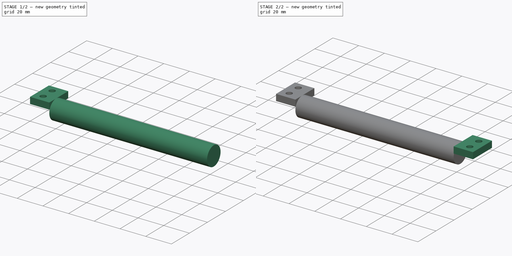
[diagram: build sequence overview — one tinted view per stage of 2, left to right]
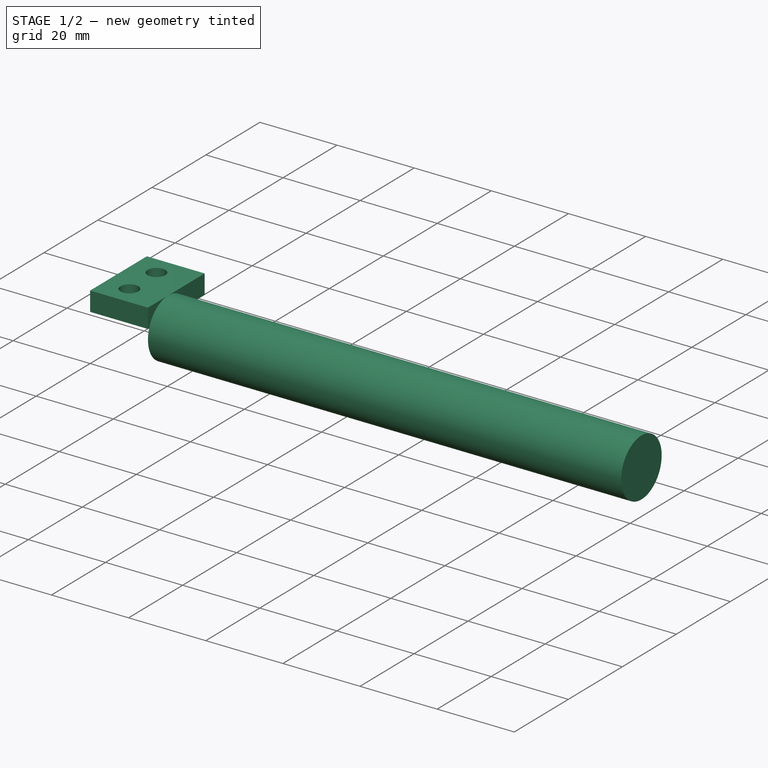
[diagram: stage 1 of 2 — iso view after this stage's code; geometry added in this stage tinted green]
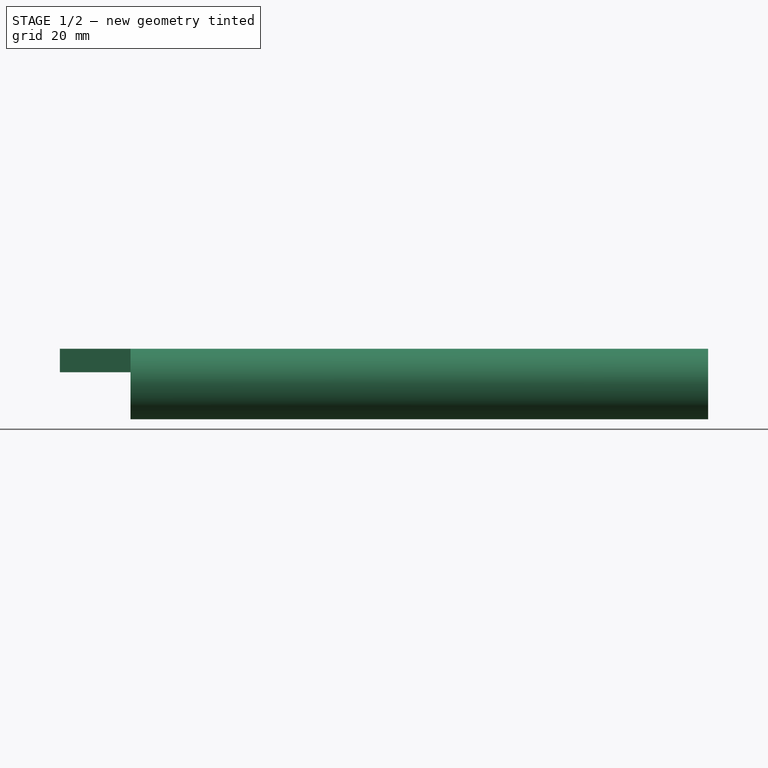
[diagram: stage 1 of 2 — front view after this stage's code; geometry added in this stage tinted green]
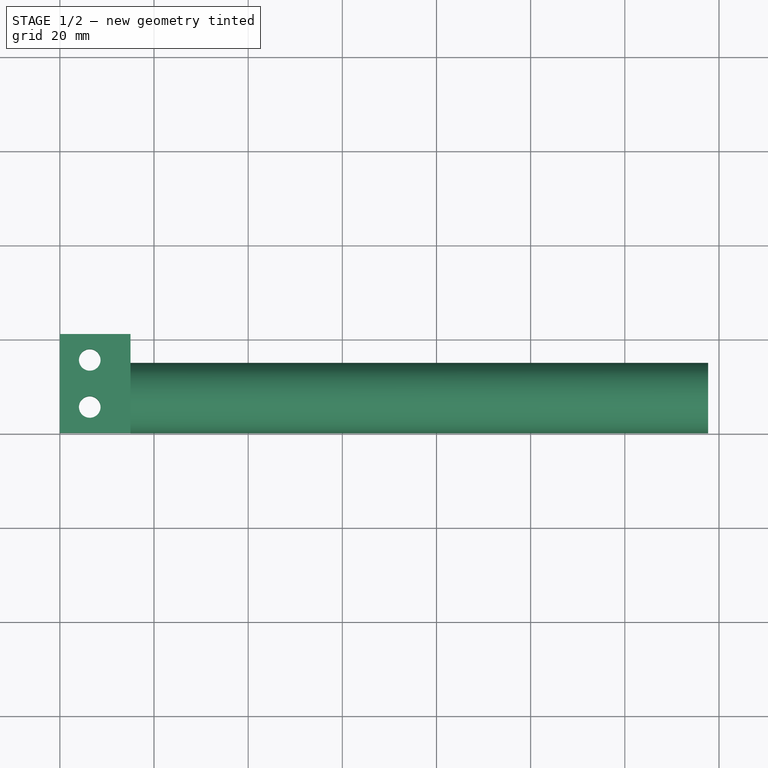
[diagram: stage 1 of 2 — top view after this stage's code; geometry added in this stage tinted green]
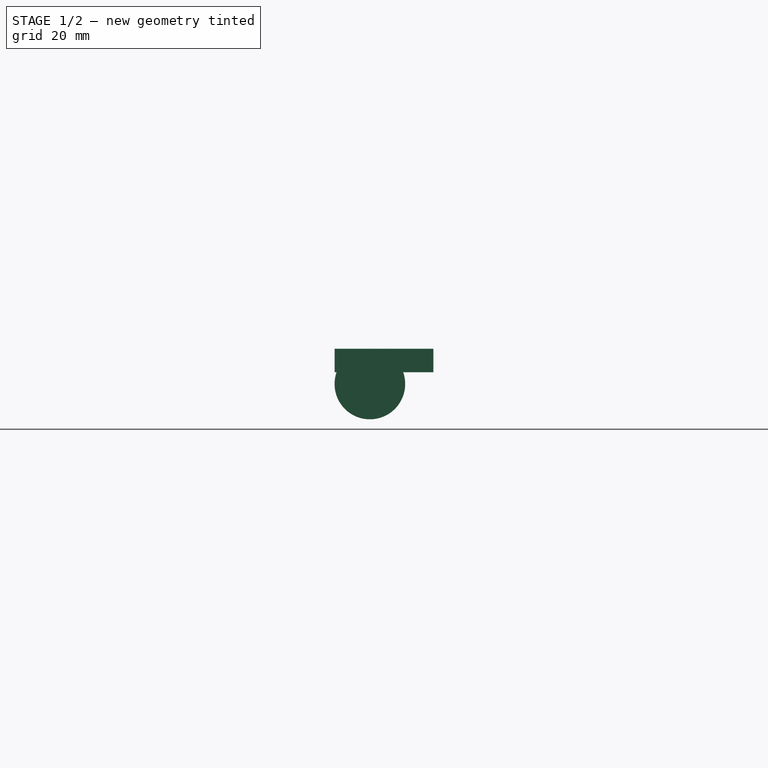
[diagram: stage 1 of 2 — right view after this stage's code; geometry added in this stage tinted green]
FCSTD DOCUMENT  (FreeCAD 0.20R29177 +426 (Git))
Label: perch
License: All rights reserved
LicenseURL: http://en.wikipedia.org/wiki/All_rights_reserved
objects: Sketcher::SketchObject×3, PartDesign::Pad×3, PartDesign::CoordinateSystem×2, PartDesign::Body×1, App::Part×1
note: 12 computed .brp shape members not serialized (recipe doc carries the construction recipe); baked Part::Feature solids carry a one-line shape summary decoded from their .brp

FEATURE [Sketcher::SketchObject] Sketch
  FullyConstrained = true
  MapMode = 5
  Support = -> [XY_Plane]
  sketch-geometry (7):
    g0: LineSegment StartX=0 StartY=0 StartZ=0 EndX=15 EndY=0 EndZ=0
    g1: LineSegment StartX=15 StartY=21 StartZ=0 EndX=0 EndY=21 EndZ=0
    g2: LineSegment StartX=0 StartY=21 StartZ=0 EndX=0 EndY=0 EndZ=0
    g3: Circle CenterX=6.35 CenterY=5.5 CenterZ=0 NormalX=0 NormalY=0 NormalZ=1 AngleXU=0 Radius=2.3
    g4: Circle CenterX=6.35 CenterY=15.5 CenterZ=0 NormalX=0 NormalY=0 NormalZ=1 AngleXU=0 Radius=2.3
    g5: GeomPoint X=8.65 Y=5.5 Z=0
    g6: LineSegment StartX=15 StartY=0 StartZ=0 EndX=15 EndY=21 EndZ=0
  constraints (19):
    c: Coincident(g1,g2)
    c: Coincident(g2,g0)
    c: Horizontal(g0)
    c: Horizontal(g1)
    c: Vertical(g2)
    c: Coincident(g0,g-1)
    c: DistanceY(g2,g2) = 21
    c: DistanceX(g1,g1) = 15
    c: PointOnObject(g5,g3)
    c: Horizontal(g5,g3)
    c: Equal(g4,g3)
    c: Diameter(g4) = 4.6
    c: Vertical(g4,g3)
    c: DistanceX(g0,g3) = 6.35
    c: DistanceY(g3,g4) = 10
    c: DistanceY(g0,g3) = 5.5
    c: Coincident(g6,g1)
    c: Vertical(g6)
    c: Coincident(g0,g6)
FEATURE [PartDesign::CoordinateSystem] LCS_0
  AttacherType = Attacher::AttachEngine3D
  MapMode = 2
  Support = -> [X_Axis001]
FEATURE [PartDesign::Pad] Pad
  Direction = (0,0,1)
  Length = 5
  Length2 = 10
  Profile = -> Sketch
  ReferenceAxis = -> Sketch [N_Axis]
  Type = 0
FEATURE [Sketcher::SketchObject] Sketch001
  FullyConstrained = true
  MapMode = 5
  Placement = pos=(15,0,0) rot=(0.57735,0.57735,0.57735;2.0944rad)
  Support = -> [Pad]
  sketch-geometry (1):
    g0: Circle CenterX=7.5 CenterY=-2.5 CenterZ=0 NormalX=0 NormalY=0 NormalZ=1 AngleXU=0 Radius=7.5
  constraints (3):
    c: Diameter(g0) = 15
    c: DistanceY(g0,g-1) = 2.5
    c: DistanceX(g-1,g0) = 7.5
FEATURE [PartDesign::Pad] Pad001
  BaseFeature = -> Pad
  Direction = (1,0,0)
  Length = 122.7
  Length2 = 10
  Profile = -> Sketch001
  ReferenceAxis = -> Sketch001 [N_Axis]
  Type = 0
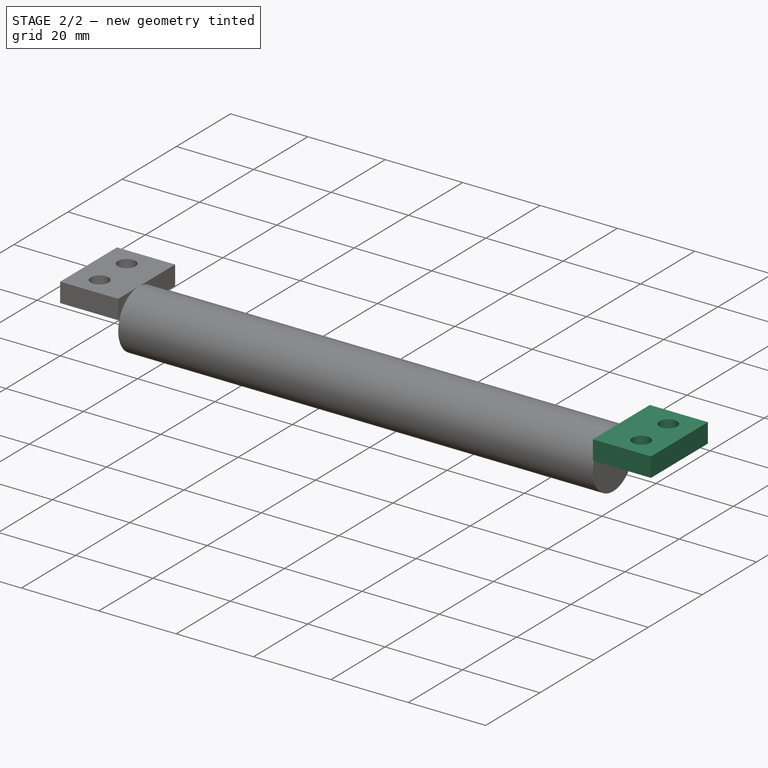
[diagram: stage 2 of 2 — iso view after this stage's code; geometry added in this stage tinted green]
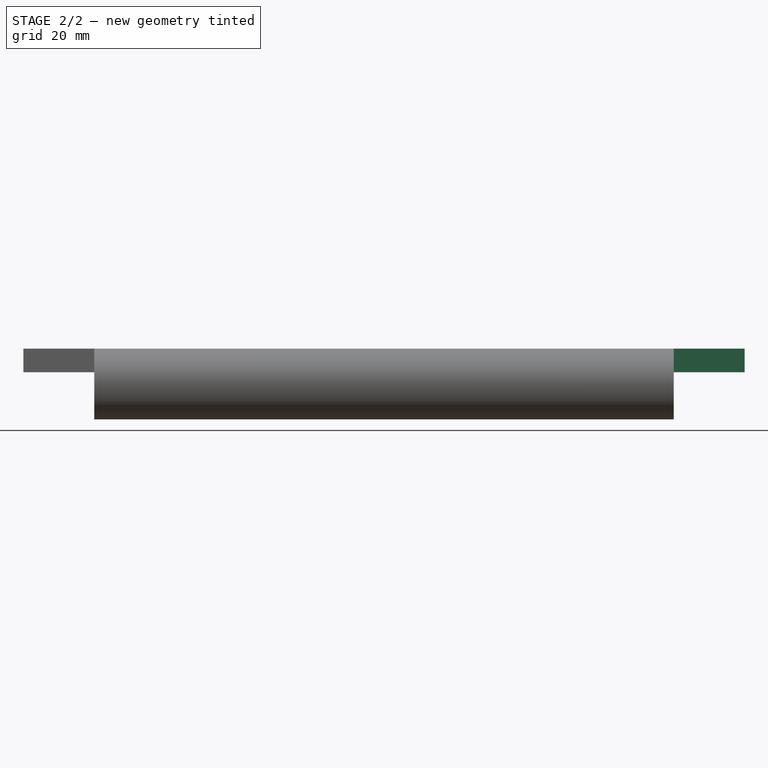
[diagram: stage 2 of 2 — front view after this stage's code; geometry added in this stage tinted green]
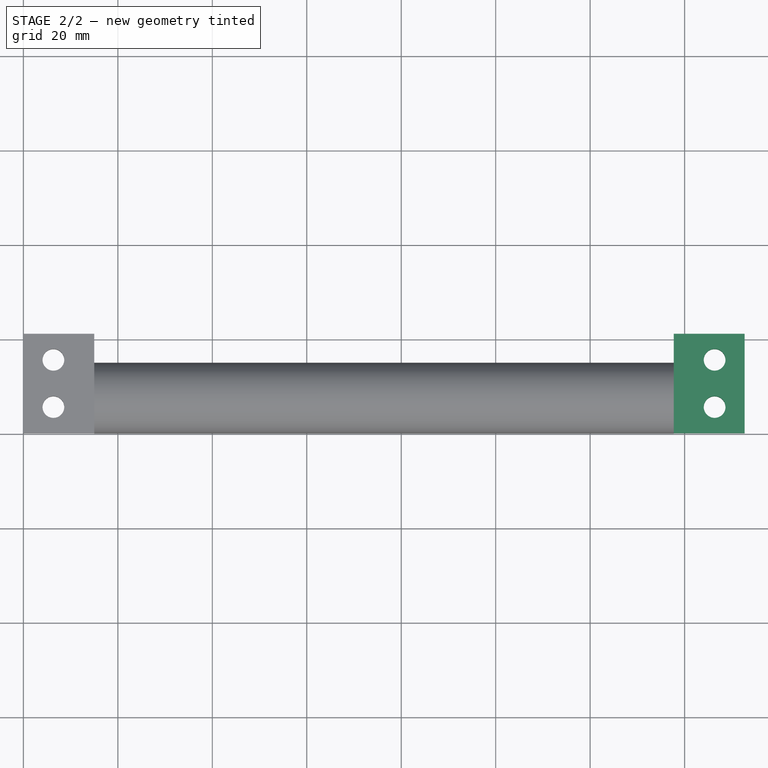
[diagram: stage 2 of 2 — top view after this stage's code; geometry added in this stage tinted green]
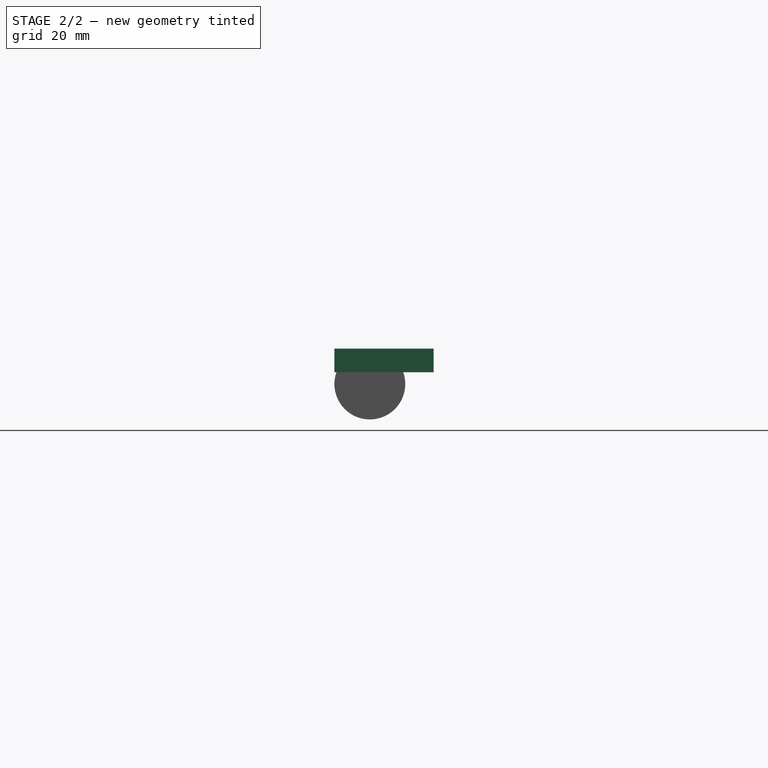
[diagram: stage 2 of 2 — right view after this stage's code; geometry added in this stage tinted green]
FEATURE [Sketcher::SketchObject] Sketch002
  FullyConstrained = true
  MapMode = 5
  Support = -> [XY_Plane]
  expr: Constraints[11] = Sketch.Constraints[11]
  expr: Constraints[13] = Sketch.Constraints[13]
  expr: Constraints[14] = Sketch.Constraints[14]
  expr: Constraints[15] = Sketch.Constraints[15]
  expr: Constraints[25] = Sketch.Constraints[6]
  expr: Constraints[26] = Sketch.Constraints[7]
  expr: Constraints[30] = Sketch.Constraints[11]
  expr: Constraints[32] = Sketch.Constraints[13]
  expr: Constraints[33] = Sketch.Constraints[14]
  expr: Constraints[34] = Sketch.Constraints[15]
  expr: Constraints[44] = Sketch.Constraints[6]
  expr: Constraints[45] = Sketch.Constraints[7]
  expr: Constraints[49] = Sketch.Constraints[11]
  expr: Constraints[51] = Sketch.Constraints[13]
  expr: Constraints[52] = Sketch.Constraints[14]
  expr: Constraints[53] = Sketch.Constraints[15]
  expr: Constraints[63] = Sketch.Constraints[6]
  expr: Constraints[64] = Sketch.Constraints[7]
  expr: Constraints[68] = Sketch.Constraints[11]
  expr: Constraints[6] = Sketch.Constraints[6]
  expr: Constraints[70] = Sketch.Constraints[13]
  expr: Constraints[71] = Sketch.Constraints[14]
  expr: Constraints[72] = Sketch.Constraints[15]
  expr: Constraints[7] = Sketch.Constraints[7]
  expr: Constraints[82] = Sketch.Constraints[6]
  expr: Constraints[83] = Sketch.Constraints[7]
  expr: Constraints[87] = Sketch.Constraints[11]
  expr: Constraints[89] = Sketch.Constraints[13]
  expr: Constraints[90] = Sketch.Constraints[14]
  expr: Constraints[91] = Sketch.Constraints[15]
  sketch-geometry (41):
    g0: LineSegment StartX=0 StartY=0 StartZ=0 EndX=15 EndY=0 EndZ=0
    g1: LineSegment StartX=15 StartY=21 StartZ=0 EndX=0 EndY=21 EndZ=0
    g2: LineSegment StartX=0 StartY=21 StartZ=0 EndX=0 EndY=0 EndZ=0
    g3: Circle CenterX=6.35 CenterY=5.5 CenterZ=0 NormalX=0 NormalY=0 NormalZ=1 AngleXU=0 Radius=2.3
    g4: Circle CenterX=6.35 CenterY=15.5 CenterZ=0 NormalX=0 NormalY=0 NormalZ=1 AngleXU=0 Radius=2.3
    g5: GeomPoint X=8.65 Y=5.5 Z=0
    g6: LineSegment StartX=15 StartY=0 StartZ=0 EndX=15 EndY=21 EndZ=0
    g7: LineSegment StartX=0 StartY=0 StartZ=0 EndX=15 EndY=0 EndZ=0
    g8: LineSegment StartX=15 StartY=21 StartZ=0 EndX=0 EndY=21 EndZ=0
    g9: LineSegment StartX=0 StartY=21 StartZ=0 EndX=0 EndY=0 EndZ=0
    g10: Circle CenterX=6.35 CenterY=5.5 CenterZ=0 NormalX=0 NormalY=0 NormalZ=1 AngleXU=0 Radius=2.3
    g11: Circle CenterX=6.35 CenterY=15.5 CenterZ=0 NormalX=0 NormalY=0 NormalZ=1 AngleXU=0 Radius=2.3
    g12: GeomPoint X=8.65 Y=5.5 Z=0
    g13: LineSegment StartX=15 StartY=0 StartZ=0 EndX=15 EndY=21 EndZ=0
    g14: LineSegment StartX=0 StartY=0 StartZ=0 EndX=15 EndY=0 EndZ=0
    g15: LineSegment StartX=15 StartY=21 StartZ=0 EndX=0 EndY=21 EndZ=0
    g16: LineSegment StartX=0 StartY=21 StartZ=0 EndX=0 EndY=0 EndZ=0
    g17: Circle CenterX=6.35 CenterY=5.5 CenterZ=0 NormalX=0 NormalY=0 NormalZ=1 AngleXU=0 Radius=2.3
    g18: Circle CenterX=6.35 CenterY=15.5 CenterZ=0 NormalX=0 NormalY=0 NormalZ=1 AngleXU=0 Radius=2.3
    g19: GeomPoint X=8.65 Y=5.5 Z=0
    g20: LineSegment StartX=15 StartY=0 StartZ=0 EndX=15 EndY=21 EndZ=0
    g21: LineSegment StartX=0 StartY=0 StartZ=0 EndX=15 EndY=0 EndZ=0
    g22: LineSegment StartX=15 StartY=21 StartZ=0 EndX=0 EndY=21 EndZ=0
    g23: LineSegment StartX=0 StartY=21 StartZ=0 EndX=0 EndY=0 EndZ=0
    g24: Circle CenterX=6.35 CenterY=5.5 CenterZ=0 NormalX=0 NormalY=0 NormalZ=1 AngleXU=0 Radius=2.3
    g25: Circle CenterX=6.35 CenterY=15.5 CenterZ=0 NormalX=0 NormalY=0 NormalZ=1 AngleXU=0 Radius=2.3
    g26: GeomPoint X=8.65 Y=5.5 Z=0
    g27: LineSegment StartX=15 StartY=0 StartZ=0 EndX=15 EndY=21 EndZ=0
    g28: LineSegment StartX=0 StartY=0 StartZ=0 EndX=15 EndY=0 EndZ=0
    g29: LineSegment StartX=15 StartY=21 StartZ=0 EndX=0 EndY=21 EndZ=0
    g30: LineSegment StartX=0 StartY=21 StartZ=0 EndX=0 EndY=0 EndZ=0
    g31: Circle CenterX=6.35 CenterY=5.5 CenterZ=0 NormalX=0 NormalY=0 NormalZ=1 AngleXU=0 Radius=2.3
    g32: Circle CenterX=6.35 CenterY=15.5 CenterZ=0 NormalX=0 NormalY=0 NormalZ=1 AngleXU=0 Radius=2.3
    g33: GeomPoint X=8.65 Y=5.5 Z=0
    g34: LineSegment StartX=15 StartY=0 StartZ=0 EndX=15 EndY=21 EndZ=0
    g35: LineSegment StartX=152.7 StartY=0 StartZ=0 EndX=137.7 EndY=0 EndZ=0
    g36: LineSegment StartX=137.7 StartY=0 StartZ=0 EndX=137.7 EndY=21 EndZ=0
    g37: LineSegment StartX=137.7 StartY=21 StartZ=0 EndX=152.7 EndY=21 EndZ=0
    g38: LineSegment StartX=152.7 StartY=21 StartZ=0 EndX=152.7 EndY=0 EndZ=0
    g39: Circle CenterX=146.35 CenterY=5.5 CenterZ=0 NormalX=0 NormalY=0 NormalZ=1 AngleXU=0 Radius=2.3
    g40: Circle CenterX=146.35 CenterY=15.5 CenterZ=0 NormalX=0 NormalY=0 NormalZ=1 AngleXU=0 Radius=2.3
  constraints (113):
    c: Coincident(g1,g2)
    c: Coincident(g2,g0)
    c: Horizontal(g0)
    c: Horizontal(g1)
    c: Vertical(g2)
    c: Coincident(g0,g-1)
    c: DistanceY(g2,g2) = 21
    c: DistanceX(g1,g1) = 15
    c: PointOnObject(g5,g3)
    c: Horizontal(g5,g3)
    c: Equal(g4,g3)
    c: Diameter(g4) = 4.6
    c: Vertical(g4,g3)
    c: DistanceX(g0,g3) = 6.35
    c: DistanceY(g3,g4) = 10
    c: DistanceY(g0,g3) = 5.5
    c: Coincident(g6,g1)
    c: Vertical(g6)
    c: Coincident(g0,g6)
    c: Coincident(g8,g9)
    c: Coincident(g9,g7)
    c: Horizontal(g7)
    c: Horizontal(g8)
    c: Vertical(g9)
    c: Coincident(g7,g-1)
    c: DistanceY(g9,g9) = 21
    c: DistanceX(g8,g8) = 15
    c: PointOnObject(g12,g10)
    c: Horizontal(g12,g10)
    c: Equal(g11,g10)
    c: Diameter(g11) = 4.6
    c: Vertical(g11,g10)
    c: DistanceX(g7,g10) = 6.35
    c: DistanceY(g10,g11) = 10
    c: DistanceY(g7,g10) = 5.5
    c: Coincident(g13,g8)
    c: Vertical(g13)
    c: Coincident(g7,g13)
    c: Coincident(g15,g16)
    c: Coincident(g16,g14)
    c: Horizontal(g14)
    c: Horizontal(g15)
    c: Vertical(g16)
    c: Coincident(g14,g-1)
    c: DistanceY(g16,g16) = 21
    c: DistanceX(g15,g15) = 15
    c: PointOnObject(g19,g17)
    c: Horizontal(g19,g17)
    c: Equal(g18,g17)
    c: Diameter(g18) = 4.6
    c: Vertical(g18,g17)
    c: DistanceX(g14,g17) = 6.35
    c: DistanceY(g17,g18) = 10
    c: DistanceY(g14,g17) = 5.5
    c: Coincident(g20,g15)
    c: Vertical(g20)
    c: Coincident(g14,g20)
    c: Coincident(g22,g23)
    c: Coincident(g23,g21)
    c: Horizontal(g21)
    c: Horizontal(g22)
    c: Vertical(g23)
    c: Coincident(g21,g-1)
    c: DistanceY(g23,g23) = 21
    c: DistanceX(g22,g22) = 15
    c: PointOnObject(g26,g24)
    c: Horizontal(g26,g24)
    c: Equal(g25,g24)
    c: Diameter(g25) = 4.6
    c: Vertical(g25,g24)
    c: DistanceX(g21,g24) = 6.35
    c: DistanceY(g24,g25) = 10
    c: DistanceY(g21,g24) = 5.5
    c: Coincident(g27,g22)
    c: Vertical(g27)
    c: Coincident(g21,g27)
    c: Coincident(g29,g30)
    c: Coincident(g30,g28)
    c: Horizontal(g28)
    c: Horizontal(g29)
    c: Vertical(g30)
    c: Coincident(g28,g-1)
    c: DistanceY(g30,g30) = 21
    c: DistanceX(g29,g29) = 15
    c: PointOnObject(g33,g31)
    c: Horizontal(g33,g31)
    c: Equal(g32,g31)
    c: Diameter(g32) = 4.6
    c: Vertical(g32,g31)
    c: DistanceX(g28,g31) = 6.35
    c: DistanceY(g31,g32) = 10
    c: DistanceY(g28,g31) = 5.5
    c: Coincident(g34,g29)
    c: Vertical(g34)
    c: Coincident(g28,g34)
    c: Coincident(g35,g36)
    c: Coincident(g36,g37)
    c: Coincident(g37,g38)
    c: Coincident(g38,g35)
    c: Horizontal(g35)
    c: Horizontal(g37)
    c: Vertical(g36)
    c: Vertical(g38)
    c: PointOnObject(g35,g-1)
    c: Equal(g36,g6)
    c: Equal(g1,g37)
    c: Equal(g39,g40)
    c: Equal(g40,g3)
    c: Vertical(g40,g39)
    c: DistanceY(g39,g40) = 10
    c: DistanceY(g35,g39) = 5.5
    c: DistanceX(g39,g35) = 6.35
    c: DistanceX(g0,g35) = 152.7
FEATURE [PartDesign::Pad] Pad002
  BaseFeature = -> Pad001
  Direction = (0,0,1)
  Length = 5
  Length2 = 10
  Profile = -> Sketch002
  ReferenceAxis = -> Sketch002 [N_Axis]
  Type = 0
FEATURE [PartDesign::Body] Body
  Group = -> [Sketch,Pad,Sketch001,Pad001,Sketch002,Pad002]
  Origin = -> Origin
  Tip = -> Pad002
FEATURE [PartDesign::CoordinateSystem] LCS_1
  AttacherType = Attacher::AttachEngine3D
  MapMode = 11
  Placement = pos=(6.35,15.5,0) rot=(0,0,1;1.5708rad)
  Support = -> [Pad002]
FEATURE [App::Part] perch
  Group = -> [LCS_0,Body,LCS_1]
  Origin = -> Origin001
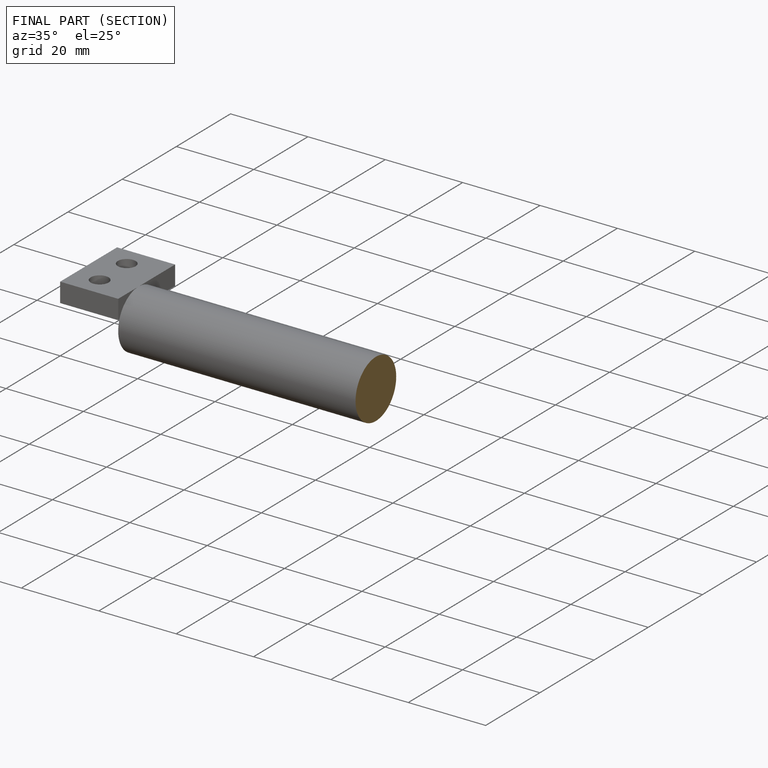
[diagram: finished part — half-section view (interior)]
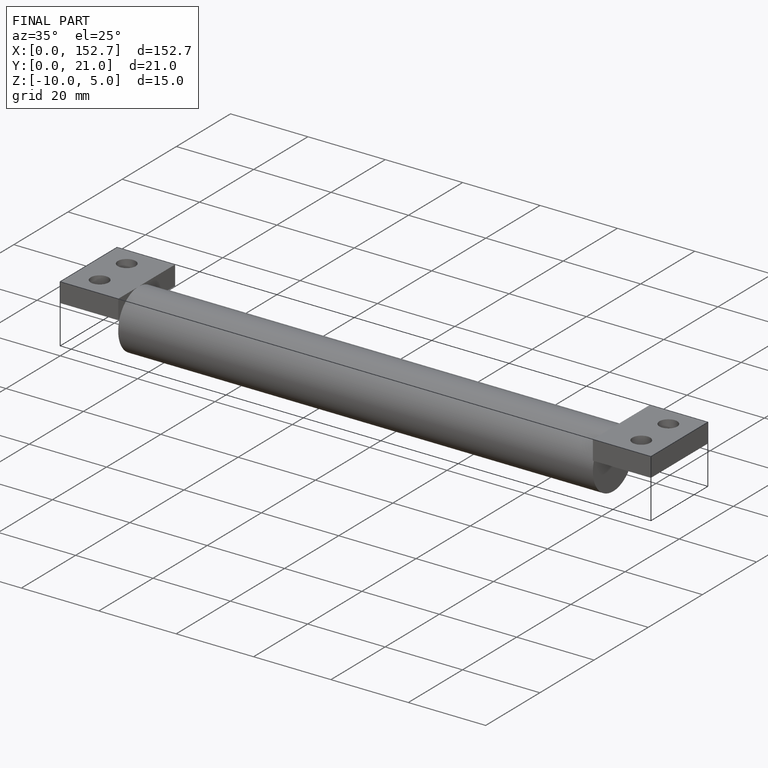
[diagram: finished part — iso view with bounding-box wireframe]
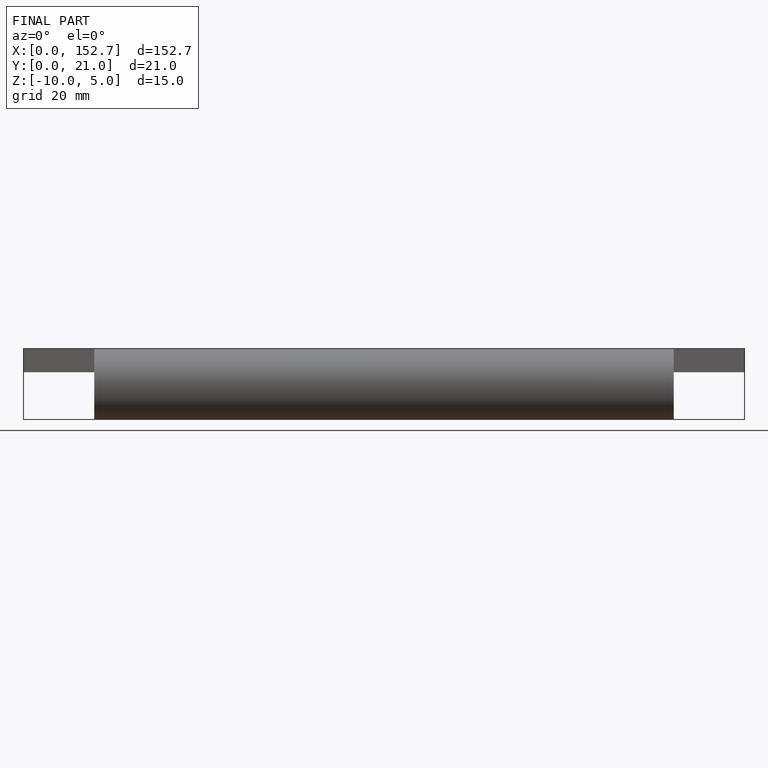
[diagram: finished part — front view with bounding-box wireframe]
